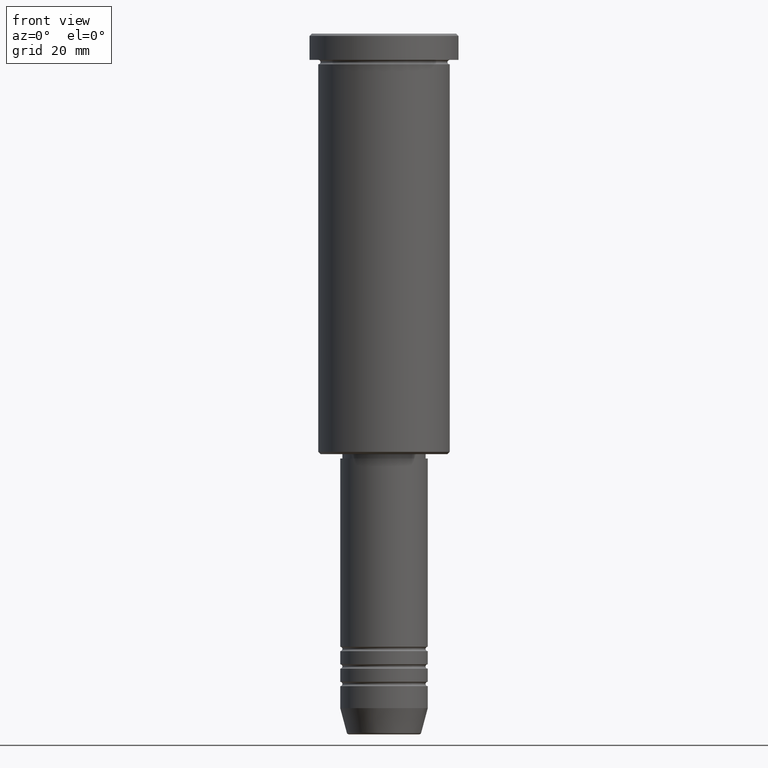
[diagram: clean part render]
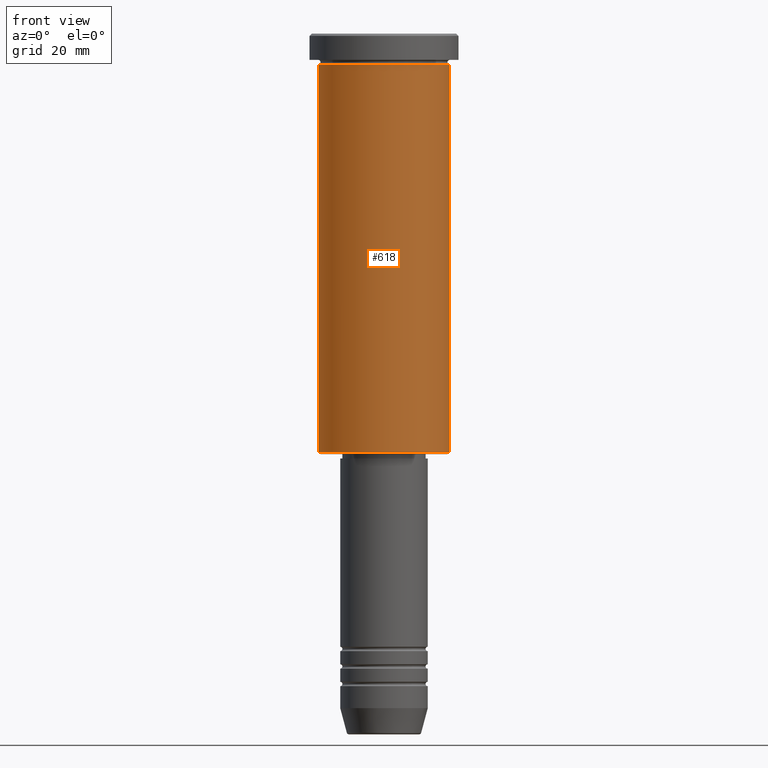
[diagram: same view with one face highlighted and labeled with its STEP entity id]
A machine part, front view. The second image highlights one B-rep face of the part: STEP entity #618.
In plain terms, the highlighted cylindrical surface (partial cylindrical patch) has radius 15 mm, axis along (-0, -0, 1).
Its self-contained STEP definition (entity closure, byte-faithful):
#39 = DIRECTION ( 'NONE',  ( 1.000000000000000000, 0.000000000000000000, 0.000000000000000000 ) ) ;
#73 = ORIENTED_EDGE ( 'NONE', *, *, #996, .T. ) ;
#83 = CARTESIAN_POINT ( 'NONE',  ( 0.000000000000000000, 0.000000000000000000, -95.49999999999997158 ) ) ;
#101 = AXIS2_PLACEMENT_3D ( 'NONE', #83, #442, #813 ) ;
#130 = CARTESIAN_POINT ( 'NONE',  ( 0.000000000000000000, 0.000000000000000000, -6.999999999999995559 ) ) ;
#154 = DIRECTION ( 'NONE',  ( -0.000000000000000000, -0.000000000000000000, 1.000000000000000000 ) ) ;
#192 = EDGE_CURVE ( 'NONE', #1012, #632, #547, .T. ) ;
#203 = EDGE_CURVE ( 'NONE', #1012, #680, #719, .T. ) ;
#209 = LINE ( 'NONE', #947, #280 ) ;
#278 = AXIS2_PLACEMENT_3D ( 'NONE', #716, #154, #535 ) ;
#280 = VECTOR ( 'NONE', #402, 1000.000000000000000 ) ;
#402 = DIRECTION ( 'NONE',  ( -0.000000000000000000, -0.000000000000000000, 1.000000000000000000 ) ) ;
#442 = DIRECTION ( 'NONE',  ( -0.000000000000000000, -0.000000000000000000, 1.000000000000000000 ) ) ;
#484 = ORIENTED_EDGE ( 'NONE', *, *, #192, .F. ) ;
#501 = EDGE_LOOP ( 'NONE', ( #484, #675, #73, #918 ) ) ;
#519 = CARTESIAN_POINT ( 'NONE',  ( -15.00000000000000000, 1.836970198721029589E-15, -6.999999999999995559 ) ) ;
#535 = DIRECTION ( 'NONE',  ( 1.000000000000000000, 0.000000000000000000, 0.000000000000000000 ) ) ;
#547 = LINE ( 'NONE', #908, #1023 ) ;
#592 = VERTEX_POINT ( 'NONE', #615 ) ;
#615 = CARTESIAN_POINT ( 'NONE',  ( 15.00000000000000000, 0.000000000000000000, -6.999999999999995559 ) ) ;
#618 = ADVANCED_FACE ( 'NONE', ( #985 ), #634, .T. ) ;
#624 = DIRECTION ( 'NONE',  ( -0.000000000000000000, -0.000000000000000000, 1.000000000000000000 ) ) ;
#632 = VERTEX_POINT ( 'NONE', #519 ) ;
#634 = CYLINDRICAL_SURFACE ( 'NONE', #278, 15.00000000000000000 ) ;
#646 = AXIS2_PLACEMENT_3D ( 'NONE', #130, #871, #39 ) ;
#675 = ORIENTED_EDGE ( 'NONE', *, *, #203, .T. ) ;
#680 = VERTEX_POINT ( 'NONE', #708 ) ;
#708 = CARTESIAN_POINT ( 'NONE',  ( 15.00000000000000000, 0.000000000000000000, -95.49999999999997158 ) ) ;
#716 = CARTESIAN_POINT ( 'NONE',  ( 0.000000000000000000, 0.000000000000000000, 0.000000000000000000 ) ) ;
#719 = CIRCLE ( 'NONE', #101, 15.00000000000000000 ) ;
#744 = CIRCLE ( 'NONE', #646, 15.00000000000000000 ) ;
#813 = DIRECTION ( 'NONE',  ( -1.000000000000000000, 0.000000000000000000, 0.000000000000000000 ) ) ;
#871 = DIRECTION ( 'NONE',  ( -0.000000000000000000, -0.000000000000000000, 1.000000000000000000 ) ) ;
#908 = CARTESIAN_POINT ( 'NONE',  ( -15.00000000000000000, 1.836970198721029589E-15, 0.000000000000000000 ) ) ;
#918 = ORIENTED_EDGE ( 'NONE', *, *, #1018, .F. ) ;
#947 = CARTESIAN_POINT ( 'NONE',  ( 15.00000000000000000, 0.000000000000000000, 0.000000000000000000 ) ) ;
#963 = CARTESIAN_POINT ( 'NONE',  ( -15.00000000000000000, 1.836970198721029589E-15, -95.49999999999997158 ) ) ;
#985 = FACE_OUTER_BOUND ( 'NONE', #501, .T. ) ;
#996 = EDGE_CURVE ( 'NONE', #680, #592, #209, .T. ) ;
#1012 = VERTEX_POINT ( 'NONE', #963 ) ;
#1018 = EDGE_CURVE ( 'NONE', #632, #592, #744, .T. ) ;
#1023 = VECTOR ( 'NONE', #624, 1000.000000000000000 ) ;